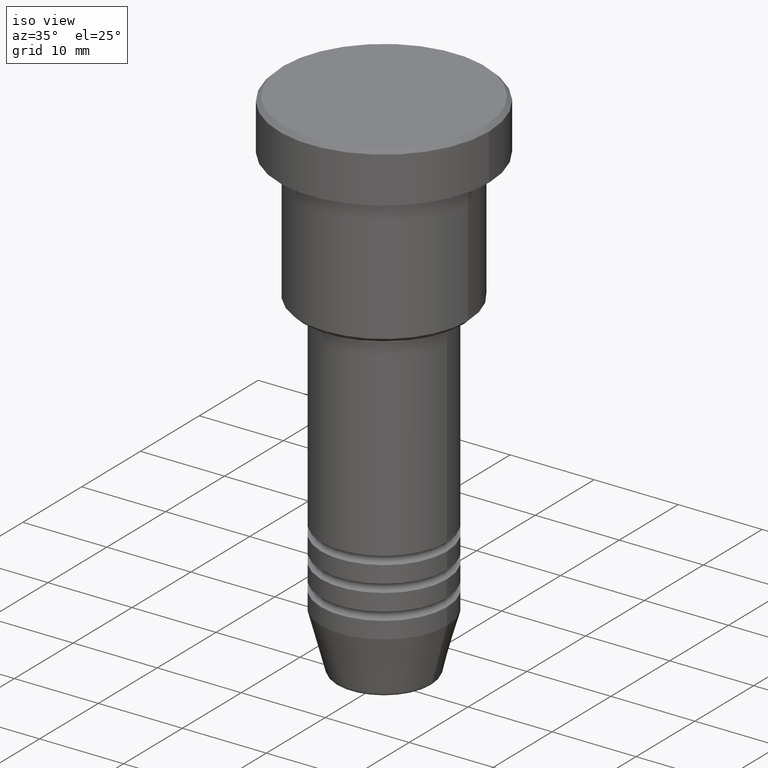
[diagram: clean part render]
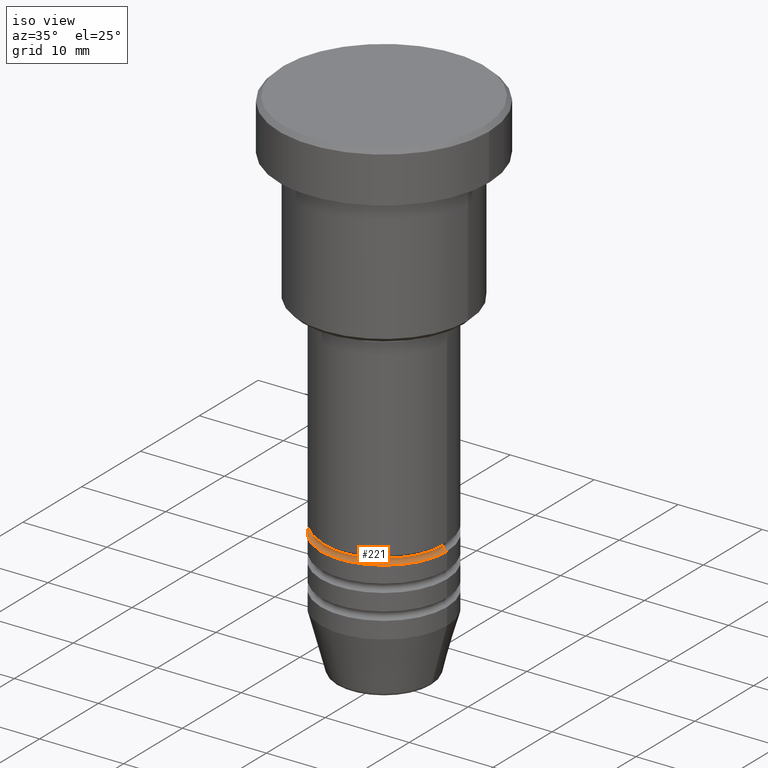
[diagram: same view with one face highlighted and labeled with its STEP entity id]
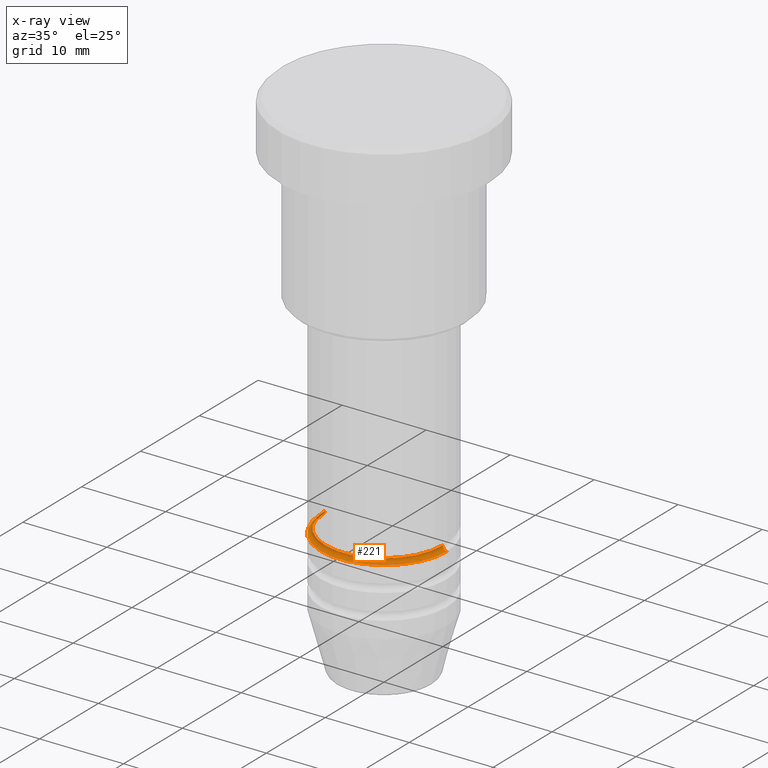
[diagram: x-ray of the same camera — body ghosted, the highlighted face saturated]
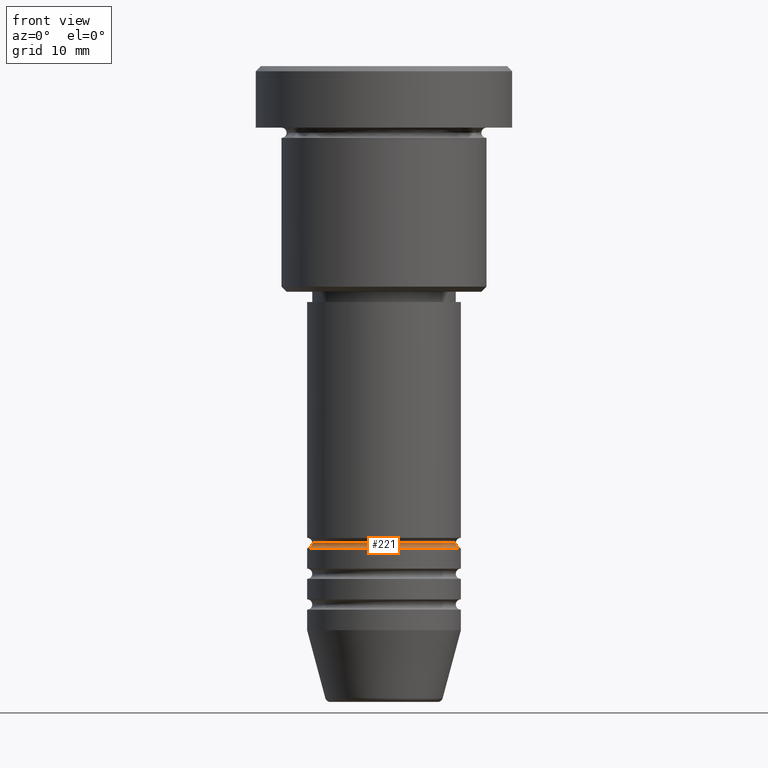
[diagram: same view with one face highlighted and labeled with its STEP entity id]
A machine part, iso view. The second image highlights one B-rep face of the part: STEP entity #221.
The next image is the same camera in x-ray: the body ghosted, the highlighted face saturated — about 1% of this face is hidden behind the body in this view.
A second angle (front view) of the same face is appended — the face is thin or edge-on in the first view.
In plain terms, the highlighted toroidal blend (fillet) surface has major radius 7.5 mm and minor (blend) radius 0.5 mm.
Its self-contained STEP definition (entity closure, byte-faithful):
#92 = CARTESIAN_POINT ( 'NONE',  ( 6.999999999999999112, 0.000000000000000000, -46.49999999999998579 ) ) ;
#93 = VERTEX_POINT ( 'NONE', #347 ) ;
#147 = CARTESIAN_POINT ( 'NONE',  ( 7.500000000000000000, 0.000000000000000000, -46.49999999999998579 ) ) ;
#149 = VERTEX_POINT ( 'NONE', #806 ) ;
#193 = AXIS2_PLACEMENT_3D ( 'NONE', #1167, #349, #906 ) ;
#216 = CIRCLE ( 'NONE', #465, 0.5000000000000004441 ) ;
#221 = ADVANCED_FACE ( 'NONE', ( #821 ), #882, .F. ) ;
#319 = CARTESIAN_POINT ( 'NONE',  ( 0.000000000000000000, 0.000000000000000000, -46.49999999999998579 ) ) ;
#330 = CARTESIAN_POINT ( 'NONE',  ( -6.999999999999999112, 8.878689293818310074E-16, -46.49999999999998579 ) ) ;
#347 = CARTESIAN_POINT ( 'NONE',  ( 7.500000000000000000, 0.000000000000000000, -46.99999999999998579 ) ) ;
#349 = DIRECTION ( 'NONE',  ( -0.000000000000000000, -0.000000000000000000, 1.000000000000000000 ) ) ;
#360 = CIRCLE ( 'NONE', #193, 7.500000000000000000 ) ;
#411 = AXIS2_PLACEMENT_3D ( 'NONE', #319, #412, #688 ) ;
#412 = DIRECTION ( 'NONE',  ( -0.000000000000000000, -0.000000000000000000, 1.000000000000000000 ) ) ;
#451 = DIRECTION ( 'NONE',  ( 1.000000000000000000, 0.000000000000000000, 0.000000000000000000 ) ) ;
#465 = AXIS2_PLACEMENT_3D ( 'NONE', #591, #509, #505 ) ;
#470 = EDGE_LOOP ( 'NONE', ( #574, #589, #1147, #681 ) ) ;
#505 = DIRECTION ( 'NONE',  ( -1.000000000000000000, 1.224646799147353454E-16, 0.000000000000000000 ) ) ;
#509 = DIRECTION ( 'NONE',  ( 1.224646799147353207E-16, 1.000000000000000000, 0.000000000000000000 ) ) ;
#574 = ORIENTED_EDGE ( 'NONE', *, *, #580, .F. ) ;
#580 = EDGE_CURVE ( 'NONE', #584, #664, #935, .T. ) ;
#584 = VERTEX_POINT ( 'NONE', #330 ) ;
#589 = ORIENTED_EDGE ( 'NONE', *, *, #1101, .T. ) ;
#591 = CARTESIAN_POINT ( 'NONE',  ( -7.500000000000000000, 9.184850993605147944E-16, -46.49999999999998579 ) ) ;
#597 = DIRECTION ( 'NONE',  ( 0.000000000000000000, -1.000000000000000000, 0.000000000000000000 ) ) ;
#664 = VERTEX_POINT ( 'NONE', #92 ) ;
#681 = ORIENTED_EDGE ( 'NONE', *, *, #1083, .F. ) ;
#688 = DIRECTION ( 'NONE',  ( 1.000000000000000000, 0.000000000000000000, 0.000000000000000000 ) ) ;
#712 = CIRCLE ( 'NONE', #925, 0.5000000000000004441 ) ;
#722 = CARTESIAN_POINT ( 'NONE',  ( 0.000000000000000000, 0.000000000000000000, -46.49999999999998579 ) ) ;
#796 = EDGE_CURVE ( 'NONE', #149, #93, #360, .T. ) ;
#806 = CARTESIAN_POINT ( 'NONE',  ( -7.500000000000000000, 9.184850993605147944E-16, -46.99999999999998579 ) ) ;
#821 = FACE_OUTER_BOUND ( 'NONE', #470, .T. ) ;
#824 = AXIS2_PLACEMENT_3D ( 'NONE', #722, #1162, #451 ) ;
#879 = DIRECTION ( 'NONE',  ( 0.000000000000000000, 0.000000000000000000, -1.000000000000000000 ) ) ;
#882 = TOROIDAL_SURFACE ( 'NONE', #824, 7.500000000000000000, 0.5000000000000000000 ) ;
#906 = DIRECTION ( 'NONE',  ( 1.000000000000000000, 0.000000000000000000, 0.000000000000000000 ) ) ;
#925 = AXIS2_PLACEMENT_3D ( 'NONE', #147, #597, #879 ) ;
#935 = CIRCLE ( 'NONE', #411, 6.999999999999999112 ) ;
#1083 = EDGE_CURVE ( 'NONE', #664, #93, #712, .T. ) ;
#1101 = EDGE_CURVE ( 'NONE', #584, #149, #216, .T. ) ;
#1147 = ORIENTED_EDGE ( 'NONE', *, *, #796, .T. ) ;
#1162 = DIRECTION ( 'NONE',  ( -0.000000000000000000, -0.000000000000000000, 1.000000000000000000 ) ) ;
#1167 = CARTESIAN_POINT ( 'NONE',  ( 0.000000000000000000, 0.000000000000000000, -46.99999999999998579 ) ) ;